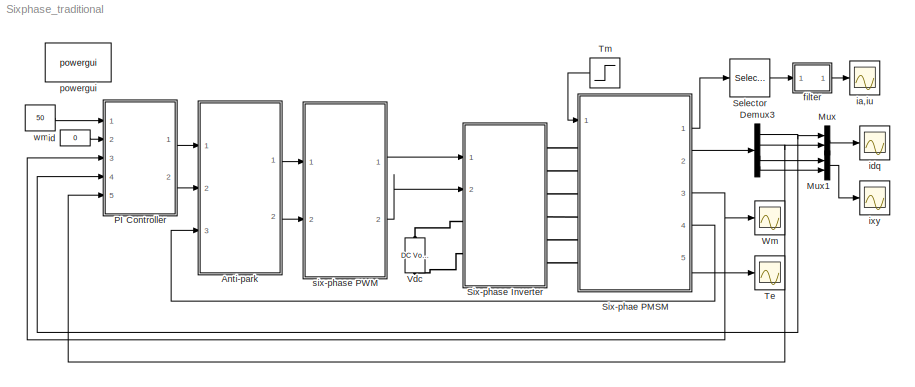
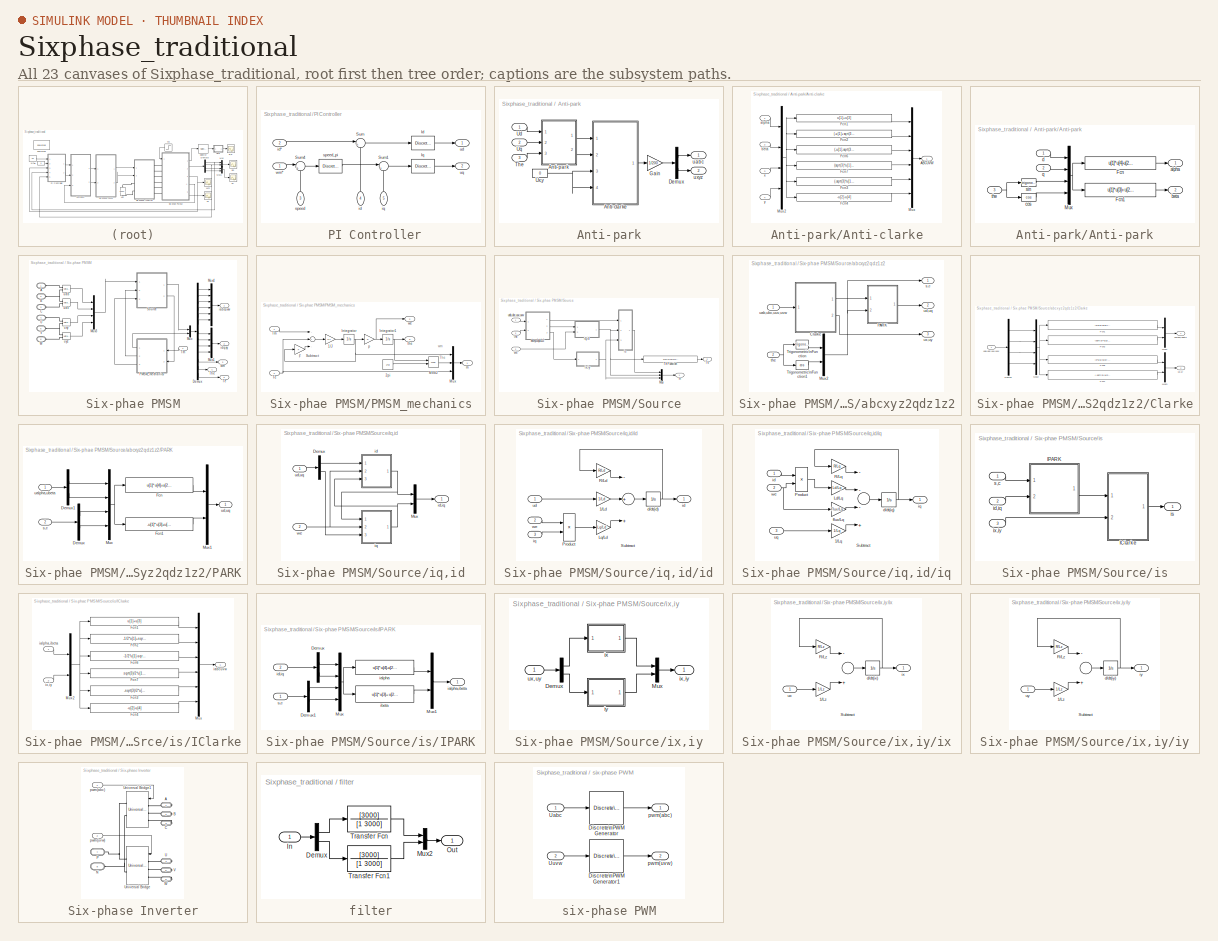
[diagram: thumbnail index - all 23 canvases of the model, root first then tree order]
MODEL Sixphase_traditional
KIND model
CONFIG InitFcn = Ts=50e-6;
BLOCK [SubSystem]  PI Controller
  Ports = [5, 2]
  RequestExecContextInheritance = off
  SID = 3
BLOCK [Reference]  PI Controller/Id  REF=powerlib_extras/Discrete \nControl Blocks/Discrete\nPI Controller
  Init = 0
  Ki = 1.4*1200
  Kp = 0.008*1200
  Par_Limits = [100 -100]
  Ports = [1, 1]
  SID = 349
  SourceBlock = powerlib_extras/Discrete \nControl Blocks/Discrete\nPI Controller
  SourceType = Discrete PI Controller
  Ts = Ts
BLOCK [Reference]  PI Controller/Iq  REF=powerlib_extras/Discrete \nControl Blocks/Discrete\nPI Controller
  Init = 0
  Ki = 1.4*1200
  Kp = 0.008*1200
  Par_Limits = [100 -100]
  Ports = [1, 1]
  SID = 350
  SourceBlock = powerlib_extras/Discrete \nControl Blocks/Discrete\nPI Controller
  SourceType = Discrete PI Controller
  Ts = Ts
BLOCK [Sum]  PI Controller/Sum
  IconShape = round
  InputSameDT = off
  Inputs = |+-
  OutDataTypeStr = Inherit: Inherit via internal rule
  Ports = [2, 1]
  SID = 54
  SaturateOnIntegerOverflow = off
BLOCK [Sum]  PI Controller/Sum1
  IconShape = round
  InputSameDT = off
  Inputs = |+-
  OutDataTypeStr = Inherit: Inherit via internal rule
  Ports = [2, 1]
  SID = 55
  SaturateOnIntegerOverflow = off
BLOCK [Sum]  PI Controller/Sum4
  IconShape = round
  InputSameDT = off
  Inputs = |+-
  OutDataTypeStr = Inherit: Inherit via internal rule
  Ports = [2, 1]
  SID = 58
  SaturateOnIntegerOverflow = off
BLOCK [Inport]  PI Controller/id
  IconDisplay = Port number
  Port = 4
  SID = 9
BLOCK [Inport]  PI Controller/id*
  IconDisplay = Port number
  Port = 2
  SID = 5
BLOCK [Inport]  PI Controller/iq
  IconDisplay = Port number
  Port = 5
  SID = 10
BLOCK [Inport]  PI Controller/speed
  IconDisplay = Port number
  Port = 3
  SID = 8
BLOCK [Reference]  PI Controller/speed_pi  REF=powerlib_extras/Discrete \nControl Blocks/Discrete\nPI Controller
  Init = 0
  Ki = 80
  Kp = 1
  Par_Limits = [50 -50]
  Ports = [1, 1]
  SID = 353
  SourceBlock = powerlib_extras/Discrete \nControl Blocks/Discrete\nPI Controller
  SourceType = Discrete PI Controller
  Ts = Ts
BLOCK [Outport]  PI Controller/ud
  IconDisplay = Port number
  SID = 59
BLOCK [Outport]  PI Controller/uq
  IconDisplay = Port number
  Port = 2
  SID = 60
BLOCK [Inport]  PI Controller/wm*
  IconDisplay = Port number
  SID = 4
BLOCK [SubSystem] Anti-park
  Ports = [3, 2]
  RequestExecContextInheritance = off
  SID = 293
BLOCK [SubSystem] Anti-park/Anti-clarke
  Ports = [4, 1]
  RequestExecContextInheritance = off
  SID = 301
BLOCK [Outport] Anti-park/Anti-clarke/ABCUVW
  IconDisplay = Port number
  SID = 314
BLOCK [Fcn] Anti-park/Anti-clarke/Fcn1
  Expr = u[1]+u[3]
  SID = 306
BLOCK [Fcn] Anti-park/Anti-clarke/Fcn2
  Expr = (-u[1]+sqrt(3)*u[2]-u[3]-sqrt(3)*u[4])/2
  SID = 307
BLOCK [Fcn] Anti-park/Anti-clarke/Fcn3
  Expr = (-sqrt(3)*u[1]+u[2]+sqrt(3)*u[3]+u[4])/2
  SID = 308
BLOCK [Fcn] Anti-park/Anti-clarke/Fcn4
  Expr = -u[2]-u[4]
  SID = 309
BLOCK [Fcn] Anti-park/Anti-clarke/Fcn6
  Expr = (-u[1]-sqrt(3)*u[2]-u[3]+sqrt(3)*u[4])/2
  SID = 310
BLOCK [Fcn] Anti-park/Anti-clarke/Fcn7
  Expr = (sqrt(3)*u[1]+u[2]-sqrt(3)*u[3]+u[4])/2
  SID = 311
BLOCK [Mux] Anti-park/Anti-clarke/Mux
  DisplayOption = bar
  Inputs = 6
  Ports = [6, 1]
  SID = 312
BLOCK [Mux] Anti-park/Anti-clarke/Mux2
  DisplayOption = bar
  Ports = [4, 1]
  SID = 313
BLOCK [Inport] Anti-park/Anti-clarke/alpha
  IconDisplay = Port number
  SID = 302
BLOCK [Inport] Anti-park/Anti-clarke/beta
  IconDisplay = Port number
  Port = 2
  SID = 303
BLOCK [Inport] Anti-park/Anti-clarke/x
  IconDisplay = Port number
  Port = 3
  SID = 304
BLOCK [Inport] Anti-park/Anti-clarke/y
  IconDisplay = Port number
  Port = 4
  SID = 305
BLOCK [SubSystem] Anti-park/Anti-park
  Ports = [3, 2]
  RequestExecContextInheritance = off
  SID = 315
BLOCK [Fcn] Anti-park/Anti-park/Fcn
  Expr = u[1]*u[4]-u[2]*u[3]
  SID = 319
BLOCK [Fcn] Anti-park/Anti-park/Fcn1
  Expr = u[1]*u[3]+u[2]*u[4]
  SID = 320
BLOCK [Mux] Anti-park/Anti-park/Mux
  DisplayOption = bar
  Ports = [4, 1]
  SID = 321
BLOCK [Outport] Anti-park/Anti-park/alpha
  IconDisplay = Port number
  SID = 324
BLOCK [Outport] Anti-park/Anti-park/beta
  IconDisplay = Port number
  Port = 2
  SID = 325
BLOCK [Trigonometry] Anti-park/Anti-park/cos
  Operator = cos
  Ports = [1, 1]
  SID = 322
BLOCK [Inport] Anti-park/Anti-park/d
  IconDisplay = Port number
  SID = 316
BLOCK [Inport] Anti-park/Anti-park/q
  IconDisplay = Port number
  Port = 2
  SID = 317
BLOCK [Trigonometry] Anti-park/Anti-park/sin
  Ports = [1, 1]
  SID = 323
BLOCK [Inport] Anti-park/Anti-park/the
  IconDisplay = Port number
  Port = 3
  SID = 318
BLOCK [Demux] Anti-park/Demux
  DisplayOption = bar
  Outputs = 2
  Ports = [1, 2]
  SID = 299
BLOCK [Gain] Anti-park/Gain
  Gain = 1/200
  OutDataTypeStr = Inherit: Inherit via internal rule
  ParamDataTypeStr = Inherit: Inherit via internal rule
  SID = 300
  SaturateOnIntegerOverflow = off
BLOCK [Inport] Anti-park/The
  IconDisplay = Port number
  Port = 3
  SID = 296
BLOCK [Inport] Anti-park/Ud
  IconDisplay = Port number
  SID = 294
BLOCK [Inport] Anti-park/Uq
  IconDisplay = Port number
  Port = 2
  SID = 295
BLOCK [Constant] Anti-park/Ux,y
  SID = 354
  Value = 0
BLOCK [Outport] Anti-park/uabc
  IconDisplay = Port number
  SID = 326
BLOCK [Outport] Anti-park/uxyz
  IconDisplay = Port number
  Port = 2
  SID = 327
BLOCK [Demux] Demux3
  DisplayOption = bar
  Ports = [1, 4]
  SID = 222
BLOCK [Mux] Mux
  DisplayOption = bar
  Inputs = 2
  Ports = [2, 1]
  SID = 369
BLOCK [Mux] Mux1
  DisplayOption = bar
  Inputs = 2
  Ports = [2, 1]
  SID = 371
BLOCK [Selector] Selector
  Indices = [1 4]
  InputPortWidth = 6
  Ports = [1, 1]
  SID = 367
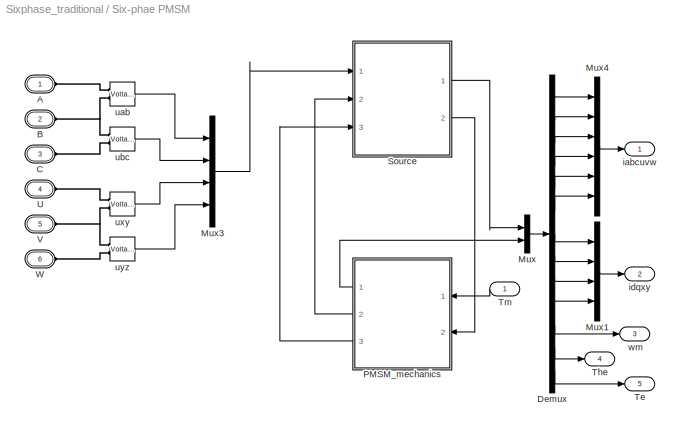
BLOCK [SubSystem] Six-phae PMSM
  Ports = [1, 5, 0, 0, 0, 6]
  RequestExecContextInheritance = off
  SID = 63
BLOCK [PMIOPort] Six-phae PMSM/A
  Port = 1
  SID = 208
  Side = Left
  Tag = PMCPort
BLOCK [PMIOPort] Six-phae PMSM/B
  Port = 2
  SID = 209
  Side = Left
  Tag = PMCPort
BLOCK [PMIOPort] Six-phae PMSM/C
  Port = 3
  SID = 210
  Side = Left
  Tag = PMCPort
BLOCK [Demux] Six-phae PMSM/Demux
  DisplayOption = bar
  Outputs = 13
  Ports = [1, 13]
  SID = 65
BLOCK [Mux] Six-phae PMSM/Mux
  DisplayOption = bar
  Inputs = 2
  Ports = [2, 1]
  SID = 66
BLOCK [Mux] Six-phae PMSM/Mux1
  DisplayOption = bar
  Ports = [4, 1]
  SID = 67
BLOCK [Mux] Six-phae PMSM/Mux3
  DisplayOption = bar
  Ports = [4, 1]
  SID = 69
BLOCK [Mux] Six-phae PMSM/Mux4
  DisplayOption = bar
  Inputs = 6
  Ports = [6, 1]
  SID = 70
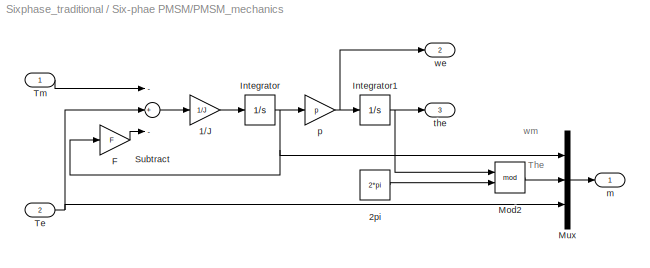
BLOCK [SubSystem] Six-phae PMSM/PMSM_mechanics
  Ports = [2, 3]
  RequestExecContextInheritance = off
  SID = 71
BLOCK [Gain] Six-phae PMSM/PMSM_mechanics/1//J
  Gain = 1/J
  OutDataTypeStr = Inherit: Inherit via internal rule
  ParamDataTypeStr = Inherit: Inherit via internal rule
  SID = 74
  SaturateOnIntegerOverflow = off
BLOCK [Constant] Six-phae PMSM/PMSM_mechanics/2pi
  SID = 76
  Value = 2*pi
BLOCK [Gain] Six-phae PMSM/PMSM_mechanics/F
  Gain = F
  OutDataTypeStr = Inherit: Inherit via internal rule
  ParamDataTypeStr = Inherit: Inherit via internal rule
  SID = 77
  SaturateOnIntegerOverflow = off
BLOCK [Integrator] Six-phae PMSM/PMSM_mechanics/Integrator
  Ports = [1, 1]
  SID = 78
BLOCK [Integrator] Six-phae PMSM/PMSM_mechanics/Integrator1
  Ports = [1, 1]
  SID = 79
BLOCK [Math] Six-phae PMSM/PMSM_mechanics/Mod2
  Operator = mod
  Ports = [2, 1]
  SID = 81
BLOCK [Mux] Six-phae PMSM/PMSM_mechanics/Mux
  DisplayOption = bar
  Inputs = 3
  Ports = [3, 1]
  SID = 82
BLOCK [Sum] Six-phae PMSM/PMSM_mechanics/Subtract
  InputSameDT = off
  Inputs = -+-
  OutDataTypeStr = Inherit: Inherit via internal rule
  Ports = [3, 1]
  SID = 83
  SaturateOnIntegerOverflow = off
BLOCK [Inport] Six-phae PMSM/PMSM_mechanics/Te
  IconDisplay = Port number
  Port = 2
  SID = 73
BLOCK [Inport] Six-phae PMSM/PMSM_mechanics/Tm
  IconDisplay = Port number
  SID = 72
BLOCK [Outport] Six-phae PMSM/PMSM_mechanics/m
  IconDisplay = Port number
  SID = 87
BLOCK [Gain] Six-phae PMSM/PMSM_mechanics/p
  Gain = p
  OutDataTypeStr = Inherit: Inherit via internal rule
  ParamDataTypeStr = Inherit: Inherit via internal rule
  SID = 84
  SaturateOnIntegerOverflow = off
BLOCK [Outport] Six-phae PMSM/PMSM_mechanics/the
  IconDisplay = Port number
  Port = 3
  SID = 86
BLOCK [Outport] Six-phae PMSM/PMSM_mechanics/we
  IconDisplay = Port number
  Port = 2
  SID = 85
BLOCK [SubSystem] Six-phae PMSM/Source
  Ports = [3, 2]
  RequestExecContextInheritance = off
  SID = 88
BLOCK [Mux] Six-phae PMSM/Source/Mux
  DisplayOption = bar
  Inputs = 3
  Ports = [3, 1]
  SID = 92
BLOCK [Outport] Six-phae PMSM/Source/Te
  IconDisplay = Port number
  Port = 2
  SID = 203
BLOCK [Fcn] Six-phae PMSM/Source/Te Function
  Expr = 3*p*(Flux*u[2]+(Ld-Lq)*u[1]*u[2])
  SID = 93
BLOCK [SubSystem] Six-phae PMSM/Source/abcxyz2qdz1z2
  Ports = [2, 3]
  RequestExecContextInheritance = off
  SID = 94
BLOCK [SubSystem] Six-phae PMSM/Source/abcxyz2qdz1z2/Clarke
  Ports = [1, 2]
  RequestExecContextInheritance = off
  SID = 97
BLOCK [Demux] Six-phae PMSM/Source/abcxyz2qdz1z2/Clarke/Demux
  DisplayOption = bar
  Ports = [1, 4]
  SID = 99
BLOCK [Fcn] Six-phae PMSM/Source/abcxyz2qdz1z2/Clarke/Fcn1
  Expr = (2*u[1]+u[2]+sqrt(3)*u[3])/6
  SID = 100
BLOCK [Fcn] Six-phae PMSM/Source/abcxyz2qdz1z2/Clarke/Fcn2
  Expr = (sqrt(3)*u[2]+u[3]+2*u[4])/6
  SID = 101
BLOCK [Fcn] Six-phae PMSM/Source/abcxyz2qdz1z2/Clarke/Fcn6
  Expr = (2*u[1]+u[2]-sqrt(3)*u[3])/6
  SID = 102
BLOCK [Fcn] Six-phae PMSM/Source/abcxyz2qdz1z2/Clarke/Fcn7
  Expr = (-sqrt(3)*u[2]+u[3]+2*u[4])/6
  SID = 103
BLOCK [Mux] Six-phae PMSM/Source/abcxyz2qdz1z2/Clarke/Mux1
  DisplayOption = bar
  Inputs = 2
  Ports = [2, 1]
  SID = 104
BLOCK [Mux] Six-phae PMSM/Source/abcxyz2qdz1z2/Clarke/Mux2
  DisplayOption = bar
  Ports = [4, 1]
  SID = 105
BLOCK [Mux] Six-phae PMSM/Source/abcxyz2qdz1z2/Clarke/Mux3
  DisplayOption = bar
  Inputs = 2
  Ports = [2, 1]
  SID = 106
BLOCK [Inport] Six-phae PMSM/Source/abcxyz2qdz1z2/Clarke/uab,ubc,uuv,uvw
  IconDisplay = Port number
  SID = 98
BLOCK [Outport] Six-phae PMSM/Source/abcxyz2qdz1z2/Clarke/ualpha,ubeta
  IconDisplay = Port number
  SID = 107
BLOCK [Outport] Six-phae PMSM/Source/abcxyz2qdz1z2/Clarke/ux,uy
  IconDisplay = Port number
  Port = 2
  SID = 108
BLOCK [Mux] Six-phae PMSM/Source/abcxyz2qdz1z2/Mux2
  DisplayOption = bar
  Inputs = 2
  Ports = [2, 1]
  SID = 109
BLOCK [SubSystem] Six-phae PMSM/Source/abcxyz2qdz1z2/PARK
  Ports = [2, 1]
  RequestExecContextInheritance = off
  SID = 110
BLOCK [Demux] Six-phae PMSM/Source/abcxyz2qdz1z2/PARK/Demux
  DisplayOption = bar
  Outputs = 2
  Ports = [1, 2]
  SID = 113
BLOCK [Demux] Six-phae PMSM/Source/abcxyz2qdz1z2/PARK/Demux1
  DisplayOption = bar
  Outputs = 2
  Ports = [1, 2]
  SID = 114
BLOCK [Fcn] Six-phae PMSM/Source/abcxyz2qdz1z2/PARK/Fcn
  Expr = u[1]*u[4]+u[2]*u[3]
  SID = 115
BLOCK [Fcn] Six-phae PMSM/Source/abcxyz2qdz1z2/PARK/Fcn1
  Expr = -u[1]*u[3]+u[2]*u[4]
  SID = 116
BLOCK [Mux] Six-phae PMSM/Source/abcxyz2qdz1z2/PARK/Mux
  DisplayOption = bar
  Ports = [4, 1]
  SID = 117
BLOCK [Mux] Six-phae PMSM/Source/abcxyz2qdz1z2/PARK/Mux1
  DisplayOption = bar
  Inputs = 2
  Ports = [2, 1]
  SID = 118
BLOCK [Inport] Six-phae PMSM/Source/abcxyz2qdz1z2/PARK/s,c
  IconDisplay = Port number
  Port = 2
  SID = 112
BLOCK [Inport] Six-phae PMSM/Source/abcxyz2qdz1z2/PARK/ualpha,ubeta
  IconDisplay = Port number
  SID = 111
BLOCK [Outport] Six-phae PMSM/Source/abcxyz2qdz1z2/PARK/ud,uq
  IconDisplay = Port number
  SID = 119
BLOCK [Trigonometry] Six-phae PMSM/Source/abcxyz2qdz1z2/Trigonometric\nFunction
  Ports = [1, 1]
  SID = 120
BLOCK [Trigonometry] Six-phae PMSM/Source/abcxyz2qdz1z2/Trigonometric\nFunction1
  Operator = cos
  Ports = [1, 1]
  SID = 121
BLOCK [Outport] Six-phae PMSM/Source/abcxyz2qdz1z2/s,c
  IconDisplay = Port number
  SID = 122
BLOCK [Inport] Six-phae PMSM/Source/abcxyz2qdz1z2/the
  IconDisplay = Port number
  Port = 2
  SID = 96
BLOCK [Inport] Six-phae PMSM/Source/abcxyz2qdz1z2/uab,ubc,uuv,uvw
  IconDisplay = Port number
  SID = 95
BLOCK [Outport] Six-phae PMSM/Source/abcxyz2qdz1z2/ud,uq
  IconDisplay = Port number
  Port = 2
  SID = 123
BLOCK [Outport] Six-phae PMSM/Source/abcxyz2qdz1z2/ux,uy
  IconDisplay = Port number
  Port = 3
  SID = 124
BLOCK [SubSystem] Six-phae PMSM/Source/iq,id
  Ports = [2, 1]
  RequestExecContextInheritance = off
  SID = 125
BLOCK [Demux] Six-phae PMSM/Source/iq,id/Demux
  DisplayOption = bar
  Outputs = 2
  Ports = [1, 2]
  SID = 128
BLOCK [Mux] Six-phae PMSM/Source/iq,id/Mux
  DisplayOption = bar
  Inputs = 2
  Ports = [2, 1]
  SID = 129
BLOCK [SubSystem] Six-phae PMSM/Source/iq,id/id
  Ports = [3, 1]
  RequestExecContextInheritance = off
  SID = 130
BLOCK [Outport] Six-phae PMSM/Source/iq,id/id,iq
  IconDisplay = Port number
  SID = 153
BLOCK [Gain] Six-phae PMSM/Source/iq,id/id/1//Ld
  Gain = 1/Ld
  OutDataTypeStr = Inherit: Inherit via internal rule
  ParamDataTypeStr = Inherit: Inherit via internal rule
  SID = 134
  SaturateOnIntegerOverflow = off
BLOCK [Gain] Six-phae PMSM/Source/iq,id/id/Lq//Ld
  Gain = Lq/Ld
  OutDataTypeStr = Inherit: Inherit via internal rule
  ParamDataTypeStr = Inherit: Inherit via internal rule
  SID = 135
  SaturateOnIntegerOverflow = off
BLOCK [Product] Six-phae PMSM/Source/iq,id/id/Product
  InputSameDT = off
  OutDataTypeStr = Inherit: Inherit via internal rule
  Ports = [2, 1]
  SID = 136
  SaturateOnIntegerOverflow = off
BLOCK [Gain] Six-phae PMSM/Source/iq,id/id/R//Ld
  Gain = R/Ld
  OutDataTypeStr = Inherit: Inherit via internal rule
  ParamDataTypeStr = Inherit: Inherit via internal rule
  SID = 137
  SaturateOnIntegerOverflow = off
BLOCK [Sum] Six-phae PMSM/Source/iq,id/id/Subtract
  InputSameDT = off
  Inputs = -++
  OutDataTypeStr = Inherit: Inherit via internal rule
  Ports = [3, 1]
  SID = 138
  SaturateOnIntegerOverflow = off
BLOCK [Integrator] Six-phae PMSM/Source/iq,id/id/d//dt(id)
  Ports = [1, 1]
  SID = 139
BLOCK [Outport] Six-phae PMSM/Source/iq,id/id/id
  IconDisplay = Port number
  SID = 140
BLOCK [Inport] Six-phae PMSM/Source/iq,id/id/iq
  IconDisplay = Port number
  Port = 3
  SID = 133
BLOCK [Inport] Six-phae PMSM/Source/iq,id/id/ud
  IconDisplay = Port number
  SID = 131
BLOCK [Inport] Six-phae PMSM/Source/iq,id/id/we
  IconDisplay = Port number
  Port = 2
  SID = 132
BLOCK [SubSystem] Six-phae PMSM/Source/iq,id/iq
  Ports = [3, 1]
  RequestExecContextInheritance = off
  SID = 141
BLOCK [Gain] Six-phae PMSM/Source/iq,id/iq/1//Lq
  Gain = 1/Lq
  OutDataTypeStr = Inherit: Inherit via internal rule
  ParamDataTypeStr = Inherit: Inherit via internal rule
  SID = 145
  SaturateOnIntegerOverflow = off
BLOCK [Gain] Six-phae PMSM/Source/iq,id/iq/Ld//Lq
  Gain = Ld/Lq
  OutDataTypeStr = Inherit: Inherit via internal rule
  ParamDataTypeStr = Inherit: Inherit via internal rule
  SID = 146
  SaturateOnIntegerOverflow = off
BLOCK [Product] Six-phae PMSM/Source/iq,id/iq/Product
  InputSameDT = off
  OutDataTypeStr = Inherit: Inherit via internal rule
  Ports = [2, 1]
  SID = 147
  SaturateOnIntegerOverflow = off
BLOCK [Gain] Six-phae PMSM/Source/iq,id/iq/R//Lq
  Gain = R/Lq
  OutDataTypeStr = Inherit: Inherit via internal rule
  ParamDataTypeStr = Inherit: Inherit via internal rule
  SID = 148
  SaturateOnIntegerOverflow = off
BLOCK [Sum] Six-phae PMSM/Source/iq,id/iq/Subtract
  InputSameDT = off
  Inputs = ---+
  OutDataTypeStr = Inherit: Inherit via internal rule
  Ports = [4, 1]
  SID = 149
  SaturateOnIntegerOverflow = off
BLOCK [Integrator] Six-phae PMSM/Source/iq,id/iq/d//dt(iq)
  Ports = [1, 1]
  SID = 150
BLOCK [Gain] Six-phae PMSM/Source/iq,id/iq/flux//Lq
  Gain = Flux/Lq
  OutDataTypeStr = Inherit: Inherit via internal rule
  ParamDataTypeStr = Inherit: Inherit via internal rule
  SID = 151
  SaturateOnIntegerOverflow = off
BLOCK [Inport] Six-phae PMSM/Source/iq,id/iq/id
  IconDisplay = Port number
  SID = 142
BLOCK [Outport] Six-phae PMSM/Source/iq,id/iq/iq
  IconDisplay = Port number
  SID = 152
BLOCK [Inport] Six-phae PMSM/Source/iq,id/iq/uq
  IconDisplay = Port number
  Port = 3
  SID = 144
BLOCK [Inport] Six-phae PMSM/Source/iq,id/iq/we
  IconDisplay = Port number
  Port = 2
  SID = 143
BLOCK [Inport] Six-phae PMSM/Source/iq,id/ud,uq
  IconDisplay = Port number
  SID = 126
BLOCK [Inport] Six-phae PMSM/Source/iq,id/we
  IconDisplay = Port number
  Port = 2
  SID = 127
BLOCK [SubSystem] Six-phae PMSM/Source/is
  Ports = [3, 1]
  RequestExecContextInheritance = off
  SID = 154
BLOCK [SubSystem] Six-phae PMSM/Source/is/IClarke
  Ports = [2, 1]
  RequestExecContextInheritance = off
  SID = 158
BLOCK [Fcn] Six-phae PMSM/Source/is/IClarke/Fcn1
  Expr = u[1]+u[3]
  SID = 163
BLOCK [Fcn] Six-phae PMSM/Source/is/IClarke/Fcn2
  Expr = -1/2*u[1]+sqrt(3)/2*u[2]-1/2*u[3]-sqrt(3)/2*u[4]
  SID = 164
BLOCK [Fcn] Six-phae PMSM/Source/is/IClarke/Fcn3
  Expr = -sqrt(3)/2*u[1]+1/2*u[2]+sqrt(3)/2*u[3]+1/2*u[4]
  SID = 165
BLOCK [Fcn] Six-phae PMSM/Source/is/IClarke/Fcn4
  Expr = -u[2]-u[4]
  SID = 166
BLOCK [Fcn] Six-phae PMSM/Source/is/IClarke/Fcn6
  Expr = -1/2*u[1]-sqrt(3)/2*u[2]-1/2*u[3]+sqrt(3)/2*u[4]
  SID = 167
BLOCK [Fcn] Six-phae PMSM/Source/is/IClarke/Fcn7
  Expr = sqrt(3)/2*u[1]+1/2*u[2]-sqrt(3)/2*u[3]+1/2*u[4]
  SID = 168
BLOCK [Mux] Six-phae PMSM/Source/is/IClarke/Mux
  DisplayOption = bar
  Inputs = 6
  Ports = [6, 1]
  SID = 169
BLOCK [Mux] Six-phae PMSM/Source/is/IClarke/Mux2
  DisplayOption = bar
  Inputs = 2
  Ports = [2, 1]
  SID = 170
BLOCK [Outport] Six-phae PMSM/Source/is/IClarke/iabcuvw
  IconDisplay = Port number
  SID = 171
BLOCK [Inport] Six-phae PMSM/Source/is/IClarke/ialpha,ibeta
  IconDisplay = Port number
  SID = 159
BLOCK [Inport] Six-phae PMSM/Source/is/IClarke/ix,iy
  IconDisplay = Port number
  Port = 2
  SID = 160
BLOCK [SubSystem] Six-phae PMSM/Source/is/IPARK
  Ports = [2, 1]
  RequestExecContextInheritance = off
  SID = 172
BLOCK [Demux] Six-phae PMSM/Source/is/IPARK/Demux
  DisplayOption = bar
  Outputs = 2
  Ports = [1, 2]
  SID = 175
BLOCK [Demux] Six-phae PMSM/Source/is/IPARK/Demux1
  DisplayOption = bar
  Outputs = 2
  Ports = [1, 2]
  SID = 176
BLOCK [Mux] Six-phae PMSM/Source/is/IPARK/Mux
  DisplayOption = bar
  Ports = [4, 1]
  SID = 177
BLOCK [Mux] Six-phae PMSM/Source/is/IPARK/Mux1
  DisplayOption = bar
  Inputs = 2
  Ports = [2, 1]
  SID = 178
BLOCK [Fcn] Six-phae PMSM/Source/is/IPARK/ialpha
  Expr = u[1]*u[4]-u[2]*u[3]
  SID = 179
BLOCK [Outport] Six-phae PMSM/Source/is/IPARK/ialpha,ibeta
  IconDisplay = Port number
  SID = 181
BLOCK [Fcn] Six-phae PMSM/Source/is/IPARK/ibeta
  Expr = u[1]*u[3]+u[2]*u[4]
  SID = 180
BLOCK [Inport] Six-phae PMSM/Source/is/IPARK/id,iq
  IconDisplay = Port number
  Port = 2
  SID = 174
BLOCK [Inport] Six-phae PMSM/Source/is/IPARK/s,c
  IconDisplay = Port number
  SID = 173
BLOCK [Inport] Six-phae PMSM/Source/is/id,iq
  IconDisplay = Port number
  Port = 2
  SID = 156
BLOCK [Outport] Six-phae PMSM/Source/is/is
  IconDisplay = Port number
  SID = 182
BLOCK [Inport] Six-phae PMSM/Source/is/ix,iy
  IconDisplay = Port number
  Port = 3
  SID = 157
BLOCK [Inport] Six-phae PMSM/Source/is/s,c
  IconDisplay = Port number
  SID = 155
BLOCK [SubSystem] Six-phae PMSM/Source/ix,iy
  Ports = [1, 1]
  RequestExecContextInheritance = off
  SID = 183
BLOCK [Demux] Six-phae PMSM/Source/ix,iy/Demux
  DisplayOption = bar
  Outputs = 2
  Ports = [1, 2]
  SID = 185
BLOCK [Mux] Six-phae PMSM/Source/ix,iy/Mux
  DisplayOption = bar
  Inputs = 2
  Ports = [2, 1]
  SID = 186
BLOCK [SubSystem] Six-phae PMSM/Source/ix,iy/ix
  Ports = [1, 1]
  RequestExecContextInheritance = off
  SID = 187
BLOCK [Outport] Six-phae PMSM/Source/ix,iy/ix,iy
  IconDisplay = Port number
  SID = 201
BLOCK [Gain] Six-phae PMSM/Source/ix,iy/ix/1//Lz
  Gain = 1/Lz
  OutDataTypeStr = Inherit: Inherit via internal rule
  ParamDataTypeStr = Inherit: Inherit via internal rule
  SID = 189
  SaturateOnIntegerOverflow = off
BLOCK [Gain] Six-phae PMSM/Source/ix,iy/ix/R//Lz
  Gain = R/Lz
  OutDataTypeStr = Inherit: Inherit via internal rule
  ParamDataTypeStr = Inherit: Inherit via internal rule
  SID = 190
  SaturateOnIntegerOverflow = off
BLOCK [Sum] Six-phae PMSM/Source/ix,iy/ix/Subtract
  InputSameDT = off
  Inputs = -+
  OutDataTypeStr = Inherit: Inherit via internal rule
  Ports = [2, 1]
  SID = 191
  SaturateOnIntegerOverflow = off
BLOCK [Integrator] Six-phae PMSM/Source/ix,iy/ix/d//dt(ix)
  Ports = [1, 1]
  SID = 192
BLOCK [Outport] Six-phae PMSM/Source/ix,iy/ix/ix
  IconDisplay = Port number
  SID = 193
BLOCK [Inport] Six-phae PMSM/Source/ix,iy/ix/ux
  IconDisplay = Port number
  SID = 188
BLOCK [SubSystem] Six-phae PMSM/Source/ix,iy/iy
  Ports = [1, 1]
  RequestExecContextInheritance = off
  SID = 194
BLOCK [Gain] Six-phae PMSM/Source/ix,iy/iy/1//Lz
  Gain = 1/Lz
  OutDataTypeStr = Inherit: Inherit via internal rule
  ParamDataTypeStr = Inherit: Inherit via internal rule
  SID = 196
  SaturateOnIntegerOverflow = off
BLOCK [Gain] Six-phae PMSM/Source/ix,iy/iy/R//Lz
  Gain = R/Lz
  OutDataTypeStr = Inherit: Inherit via internal rule
  ParamDataTypeStr = Inherit: Inherit via internal rule
  SID = 197
  SaturateOnIntegerOverflow = off
BLOCK [Sum] Six-phae PMSM/Source/ix,iy/iy/Subtract
  InputSameDT = off
  Inputs = -+
  OutDataTypeStr = Inherit: Inherit via internal rule
  Ports = [2, 1]
  SID = 198
  SaturateOnIntegerOverflow = off
BLOCK [Integrator] Six-phae PMSM/Source/ix,iy/iy/d//dt(iy)
  Ports = [1, 1]
  SID = 199
BLOCK [Outport] Six-phae PMSM/Source/ix,iy/iy/iy
  IconDisplay = Port number
  SID = 200
BLOCK [Inport] Six-phae PMSM/Source/ix,iy/iy/uy
  IconDisplay = Port number
  SID = 195
BLOCK [Inport] Six-phae PMSM/Source/ix,iy/ux,uy
  IconDisplay = Port number
  SID = 184
BLOCK [Outport] Six-phae PMSM/Source/m
  IconDisplay = Port number
  SID = 202
BLOCK [Inport] Six-phae PMSM/Source/the
  IconDisplay = Port number
  Port = 3
  SID = 91
BLOCK [Inport] Six-phae PMSM/Source/uab,ubc,uuv,uvw
  IconDisplay = Port number
  SID = 89
BLOCK [Inport] Six-phae PMSM/Source/we
  IconDisplay = Port number
  Port = 2
  SID = 90
BLOCK [Outport] Six-phae PMSM/Te
  IconDisplay = Port number
  Port = 5
  SID = 221
BLOCK [Outport] Six-phae PMSM/The
  IconDisplay = Port number
  Port = 4
  SID = 220
BLOCK [Inport] Six-phae PMSM/Tm
  IconDisplay = Port number
  SID = 64
BLOCK [PMIOPort] Six-phae PMSM/U
  Port = 4
  SID = 211
  Side = Left
  Tag = PMCPort
BLOCK [PMIOPort] Six-phae PMSM/V
  Port = 5
  SID = 212
  Side = Left
  Tag = PMCPort
BLOCK [PMIOPort] Six-phae PMSM/W
  Port = 6
  SID = 213
  Side = Left
  Tag = PMCPort
BLOCK [Outport] Six-phae PMSM/iabcuvw
  IconDisplay = Port number
  SID = 214
BLOCK [Outport] Six-phae PMSM/idqxy
  IconDisplay = Port number
  Port = 2
  SID = 215
BLOCK [Reference] Six-phae PMSM/uab  REF=powerlib/Measurements/Voltage Measurement
  OutputType = Complex
  PSBequivalent = 0
  PhasorSimulation = off
  Ports = [0, 1, 0, 0, 0, 2]
  SID = 204
  SourceBlock = powerlib/Measurements/Voltage Measurement
  SourceType = Voltage Measurement
BLOCK [Reference] Six-phae PMSM/ubc  REF=powerlib/Measurements/Voltage Measurement
  OutputType = Complex
  PSBequivalent = 0
  PhasorSimulation = off
  Ports = [0, 1, 0, 0, 0, 2]
  SID = 205
  SourceBlock = powerlib/Measurements/Voltage Measurement
  SourceType = Voltage Measurement
BLOCK [Reference] Six-phae PMSM/uxy  REF=powerlib/Measurements/Voltage Measurement
  OutputType = Complex
  PSBequivalent = 0
  PhasorSimulation = off
  Ports = [0, 1, 0, 0, 0, 2]
  SID = 206
  SourceBlock = powerlib/Measurements/Voltage Measurement
  SourceType = Voltage Measurement
BLOCK [Reference] Six-phae PMSM/uyz  REF=powerlib/Measurements/Voltage Measurement
  OutputType = Complex
  PSBequivalent = 0
  PhasorSimulation = off
  Ports = [0, 1, 0, 0, 0, 2]
  SID = 207
  SourceBlock = powerlib/Measurements/Voltage Measurement
  SourceType = Voltage Measurement
BLOCK [Outport] Six-phae PMSM/wm
  IconDisplay = Port number
  Port = 3
  SID = 217
BLOCK [SubSystem] Six-phase Inverter
  Ports = [2, 0, 0, 0, 0, 2, 6]
  RequestExecContextInheritance = off
  SID = 329
BLOCK [PMIOPort] Six-phase Inverter/A
  Port = 1
  SID = 332
  Side = Right
BLOCK [PMIOPort] Six-phase Inverter/B
  Port = 2
  SID = 333
  Side = Right
BLOCK [PMIOPort] Six-phase Inverter/C
  Port = 3
  SID = 334
  Side = Right
BLOCK [PMIOPort] Six-phase Inverter/N
  Port = 8
  SID = 339
  Side = Left
BLOCK [PMIOPort] Six-phase Inverter/P
  Port = 7
  SID = 338
  Side = Left
BLOCK [PMIOPort] Six-phase Inverter/U
  Port = 4
  SID = 335
  Side = Right
BLOCK [Reference] Six-phase Inverter/Universal Bridge  REF=powerlib/Power\nElectronics/Universal Bridge
  Arms = 3
  Device = IGBT / Diodes
  ForwardVoltage = 0
  ForwardVoltages = [  0  0  ]
  GTOparameters = [ 10e-6 , 20e-6 ]
  IGBTparameters = [ 1e-6 , 2e-6 ]
  Lon = 0
  Measurements = None
  Measurements_2 = None
  Ports = [1, 0, 0, 0, 0, 3, 2]
  Ron = 1e-3
  SID = 232
  SnubberCapacitance = inf
  SnubberResistance = 1e5
  SourceBlock = powerlib/Power\nElectronics/Universal Bridge
  SourceType = Universal Bridge
  converterType = Rectifier
BLOCK [Reference] Six-phase Inverter/Universal Bridge1  REF=powerlib/Power\nElectronics/Universal Bridge
  Arms = 3
  Device = IGBT / Diodes
  ForwardVoltage = 0
  ForwardVoltages = [  0  0  ]
  GTOparameters = [ 10e-6 , 20e-6 ]
  IGBTparameters = [ 1e-6 , 2e-6 ]
  Lon = 0
  Measurements = None
  Measurements_2 = None
  Ports = [1, 0, 0, 0, 0, 3, 2]
  Ron = 1e-3
  SID = 233
  SnubberCapacitance = inf
  SnubberResistance = 1e5
  SourceBlock = powerlib/Power\nElectronics/Universal Bridge
  SourceType = Universal Bridge
  converterType = Rectifier
BLOCK [PMIOPort] Six-phase Inverter/V
  Port = 5
  SID = 336
  Side = Right
BLOCK [PMIOPort] Six-phase Inverter/W
  Port = 6
  SID = 337
  Side = Right
BLOCK [Inport] Six-phase Inverter/pwm(abc)
  IconDisplay = Port number
  SID = 330
BLOCK [Inport] Six-phase Inverter/pwm(uvw)
  IconDisplay = Port number
  Port = 2
  SID = 331
BLOCK [Scope] Te
  DataFormat = StructureWithTime
  Floating = off
  LimitDataPoints = off
  NumInputPorts = 1
  Ports = [1]
  SID = 368
  SampleTime = 0
  SaveName = Te
  SaveToWorkspace = on
  ShowLegends = off
  YMax = 20
  YMin = -20
  ZoomMode = yonly
BLOCK [Step] Tm
  After = 50
  SID = 228
  SampleTime = 0
  Time = 0.2
BLOCK [Reference] Vdc  REF=powerlib/Electrical\nSources/DC Voltage Source
  Amplitude = 400
  Measurements = None
  Ports = [0, 0, 0, 0, 0, 1, 1]
  SID = 1
  SourceBlock = powerlib/Electrical\nSources/DC Voltage Source
  SourceType = DC Voltage Source
BLOCK [Scope] Wm
  DataFormat = StructureWithTime
  Floating = off
  LimitDataPoints = off
  NumInputPorts = 1
  Ports = [1]
  SID = 355
  SampleTime = 0
  SaveName = wm
  SaveToWorkspace = on
  ShowLegends = off
  YMax = 20
  YMin = -20
  ZoomMode = yonly
BLOCK [SubSystem] filter
  Ports = [1, 1]
  RequestExecContextInheritance = off
  SID = 376
BLOCK [Demux] filter/Demux
  DisplayOption = bar
  Outputs = 2
  Ports = [1, 2]
  SID = 375
BLOCK [Inport] filter/In
  IconDisplay = Port number
  SID = 377
BLOCK [Mux] filter/Mux2
  DisplayOption = bar
  Inputs = 2
  Ports = [2, 1]
  SID = 374
BLOCK [Outport] filter/Out
  IconDisplay = Port number
  SID = 378
BLOCK [TransferFcn] filter/Transfer Fcn
  Denominator = [1 3000]
  Numerator = [3000]
  SID = 372
BLOCK [TransferFcn] filter/Transfer Fcn1
  Denominator = [1 3000]
  Numerator = [3000]
  SID = 373
BLOCK [Scope] ia,iu
  DataFormat = StructureWithTime
  Floating = off
  LimitDataPoints = off
  NumInputPorts = 1
  Ports = [1]
  SID = 225
  SampleTime = 0
  SaveName = iau
  SaveToWorkspace = on
  ShowLegends = off
  YMax = 40
  YMin = -30
  ZoomMode = xonly
BLOCK [Constant] id
  SID = 286
  Value = 0
BLOCK [Scope] idq
  DataFormat = StructureWithTime
  Floating = off
  LimitDataPoints = off
  NumInputPorts = 1
  Ports = [1]
  SID = 226
  SampleTime = 0
  SaveName = idq
  SaveToWorkspace = on
  ShowLegends = off
  YMax = 0.075
  YMin = -0.075
  ZoomMode = yonly
BLOCK [Scope] ixy
  DataFormat = StructureWithTime
  Floating = off
  LimitDataPoints = off
  NumInputPorts = 1
  Ports = [1]
  SID = 370
  SampleTime = 0
  SaveName = ixy
  SaveToWorkspace = on
  ShowLegends = off
  YMax = 0.075
  YMin = -0.075
  ZoomMode = yonly
BLOCK [Reference] powergui  REF=powerlib/powergui
  DisableRonSwitches = off
  DisableSnubberDevices = off
  DisableVfSwitches = off
  DisplayEquations = off
  DisplayStyle = 1
  EnableUseOfTLC = off
  ErrMax = 1e-4
  Frange = [0:2:500]
  FreqAxis = off
  FunctionMessages = off
  HookPort = off
  Interpol = off
  Iterations = 50
  MaxFrequency = 1000
  Pbase = 100e6
  Ports = []
  Priority = 1
  ResistiveCurrentMeasurement = off
  RestoreLinks = warning
  RmsSteady = 1
  SID = 348
  SPID = off
  SampleTime = 50e-6
  ShowGrid = off
  SolverType = Tustin/Backward Euler (TBE)
  SourceBlock = powerlib/powergui
  SourceType = PSB option menu block
  StartTime = 0.25
  SwTol = 0
  Ts = 100
  UnitsV = kV
  UnitsW = MW
  UserData = DataTag0
  UserDataPersistent = on
  Xlog = on
  Ylog = off
  ZoomFFT = off
  cycles = 1
  display = off
  echomessages = off
  frequency = 60
  frequencyindice = 0
  frequencyindicesteady = 1
  fundamental = 25
  methode = off
  save = off
  structure = iau
  variable = ZData
  x0status = blocks
BLOCK [SubSystem] six-phase PWM
  Ports = [2, 2]
  RequestExecContextInheritance = off
  SID = 359
BLOCK [Reference] six-phase PWM/Discrete\nPWM Generator  REF=powerlib_extras/Discrete \nControl Blocks/Discrete\nPWM Generator
  Fc = 10000
  Freq = 60
  GeneratorMode = 3-arm  bridge (6 pulses)
  Internal = off
  Phase = 0
  Ports = [1, 1]
  SID = 223
  SourceBlock = powerlib_extras/Discrete \nControl Blocks/Discrete\nPWM Generator
  SourceType = Discrete PWM Generator
  Ts = 100e-6
  mIndex = 0.4
BLOCK [Reference] six-phase PWM/Discrete\nPWM Generator1  REF=powerlib_extras/Discrete \nControl Blocks/Discrete\nPWM Generator
  Fc = 10000
  Freq = 60
  GeneratorMode = 3-arm  bridge (6 pulses)
  Internal = off
  Phase = 0
  Ports = [1, 1]
  SID = 224
  SourceBlock = powerlib_extras/Discrete \nControl Blocks/Discrete\nPWM Generator
  SourceType = Discrete PWM Generator
  Ts = 100e-6
  mIndex = 0.4
BLOCK [Inport] six-phase PWM/Uabc
  IconDisplay = Port number
  SID = 360
BLOCK [Inport] six-phase PWM/Uuvw
  IconDisplay = Port number
  Port = 2
  SID = 361
BLOCK [Outport] six-phase PWM/pwm(abc)
  IconDisplay = Port number
  SID = 362
BLOCK [Outport] six-phase PWM/pwm(uvw)
  IconDisplay = Port number
  Port = 2
  SID = 363
BLOCK [Constant] wm
  SID = 328
  Value = 50
ANNOTATION Six-phae PMSM/PMSM_mechanics: The
ANNOTATION Six-phae PMSM/PMSM_mechanics: wm
LINE  PI Controller/Id:1 ->  PI Controller/ud:1
LINE  PI Controller/Iq:1 ->  PI Controller/uq:1
LINE  PI Controller/Sum1:1 ->  PI Controller/Iq:1
LINE  PI Controller/Sum4:1 ->  PI Controller/speed_pi:1
LINE  PI Controller/Sum:1 ->  PI Controller/Id:1
LINE  PI Controller/id*:1 ->  PI Controller/Sum:1
LINE  PI Controller/id:1 ->  PI Controller/Sum:2
LINE  PI Controller/iq:1 ->  PI Controller/Sum1:2
LINE  PI Controller/speed:1 ->  PI Controller/Sum4:2
LINE  PI Controller/speed_pi:1 ->  PI Controller/Sum1:1
LINE  PI Controller/wm*:1 ->  PI Controller/Sum4:1
LINE  PI Controller:1 -> Anti-park:1
LINE  PI Controller:2 -> Anti-park:2
LINE Anti-park/Anti-clarke/Fcn1:1 -> Anti-park/Anti-clarke/Mux:1
LINE Anti-park/Anti-clarke/Fcn2:1 -> Anti-park/Anti-clarke/Mux:2
LINE Anti-park/Anti-clarke/Fcn3:1 -> Anti-park/Anti-clarke/Mux:5
LINE Anti-park/Anti-clarke/Fcn4:1 -> Anti-park/Anti-clarke/Mux:6
LINE Anti-park/Anti-clarke/Fcn6:1 -> Anti-park/Anti-clarke/Mux:3
LINE Anti-park/Anti-clarke/Fcn7:1 -> Anti-park/Anti-clarke/Mux:4
NET Anti-park/Anti-clarke/Mux2:1 -> Anti-park/Anti-clarke/Fcn1:1, Anti-park/Anti-clarke/Fcn2:1, Anti-park/Anti-clarke/Fcn3:1, Anti-park/Anti-clarke/Fcn4:1, Anti-park/Anti-clarke/Fcn6:1, Anti-park/Anti-clarke/Fcn7:1
LINE Anti-park/Anti-clarke/Mux:1 -> Anti-park/Anti-clarke/ABCUVW:1
LINE Anti-park/Anti-clarke/alpha:1 -> Anti-park/Anti-clarke/Mux2:1
LINE Anti-park/Anti-clarke/beta:1 -> Anti-park/Anti-clarke/Mux2:2
LINE Anti-park/Anti-clarke/x:1 -> Anti-park/Anti-clarke/Mux2:3
LINE Anti-park/Anti-clarke/y:1 -> Anti-park/Anti-clarke/Mux2:4
LINE Anti-park/Anti-clarke:1 -> Anti-park/Gain:1
LINE Anti-park/Anti-park/Fcn1:1 -> Anti-park/Anti-park/beta:1
LINE Anti-park/Anti-park/Fcn:1 -> Anti-park/Anti-park/alpha:1
NET Anti-park/Anti-park/Mux:1 -> Anti-park/Anti-park/Fcn1:1, Anti-park/Anti-park/Fcn:1
LINE Anti-park/Anti-park/cos:1 -> Anti-park/Anti-park/Mux:4
LINE Anti-park/Anti-park/d:1 -> Anti-park/Anti-park/Mux:1
LINE Anti-park/Anti-park/q:1 -> Anti-park/Anti-park/Mux:2
LINE Anti-park/Anti-park/sin:1 -> Anti-park/Anti-park/Mux:3
NET Anti-park/Anti-park/the:1 -> Anti-park/Anti-park/cos:1, Anti-park/Anti-park/sin:1
LINE Anti-park/Anti-park:1 -> Anti-park/Anti-clarke:1
LINE Anti-park/Anti-park:2 -> Anti-park/Anti-clarke:2
LINE Anti-park/Demux:1 -> Anti-park/uabc:1
LINE Anti-park/Demux:2 -> Anti-park/uxyz:1
LINE Anti-park/Gain:1 -> Anti-park/Demux:1
LINE Anti-park/The:1 -> Anti-park/Anti-park:3
LINE Anti-park/Ud:1 -> Anti-park/Anti-park:1
LINE Anti-park/Uq:1 -> Anti-park/Anti-park:2
NET Anti-park/Ux,y:1 -> Anti-park/Anti-clarke:3, Anti-park/Anti-clarke:4
LINE Anti-park:1 -> six-phase PWM:1
LINE Anti-park:2 -> six-phase PWM:2
NET Demux3:1 ->  PI Controller:4, Mux:1
NET Demux3:2 ->  PI Controller:5, Mux:2
LINE Demux3:3 -> Mux1:1
LINE Demux3:4 -> Mux1:2
LINE Mux1:1 -> ixy:1
LINE Mux:1 -> idq:1
LINE Selector:1 -> filter:1
LINE Six-phae PMSM/Demux:1 -> Six-phae PMSM/Mux4:1
LINE Six-phae PMSM/Demux:10 -> Six-phae PMSM/Mux1:4
LINE Six-phae PMSM/Demux:11 -> Six-phae PMSM/wm:1
LINE Six-phae PMSM/Demux:12 -> Six-phae PMSM/The:1
LINE Six-phae PMSM/Demux:13 -> Six-phae PMSM/Te:1
LINE Six-phae PMSM/Demux:2 -> Six-phae PMSM/Mux4:2
LINE Six-phae PMSM/Demux:3 -> Six-phae PMSM/Mux4:3
LINE Six-phae PMSM/Demux:4 -> Six-phae PMSM/Mux4:4
LINE Six-phae PMSM/Demux:5 -> Six-phae PMSM/Mux4:5
LINE Six-phae PMSM/Demux:6 -> Six-phae PMSM/Mux4:6
LINE Six-phae PMSM/Demux:7 -> Six-phae PMSM/Mux1:1
LINE Six-phae PMSM/Demux:8 -> Six-phae PMSM/Mux1:2
LINE Six-phae PMSM/Demux:9 -> Six-phae PMSM/Mux1:3
LINE Six-phae PMSM/Mux1:1 -> Six-phae PMSM/idqxy:1
LINE Six-phae PMSM/Mux3:1 -> Six-phae PMSM/Source:1
LINE Six-phae PMSM/Mux4:1 -> Six-phae PMSM/iabcuvw:1
LINE Six-phae PMSM/Mux:1 -> Six-phae PMSM/Demux:1
LINE Six-phae PMSM/PMSM_mechanics/1//J:1 -> Six-phae PMSM/PMSM_mechanics/Integrator:1
LINE Six-phae PMSM/PMSM_mechanics/2pi:1 -> Six-phae PMSM/PMSM_mechanics/Mod2:2
LINE Six-phae PMSM/PMSM_mechanics/F:1 -> Six-phae PMSM/PMSM_mechanics/Subtract:3
NET Six-phae PMSM/PMSM_mechanics/Integrator1:1 -> Six-phae PMSM/PMSM_mechanics/Mod2:1, Six-phae PMSM/PMSM_mechanics/the:1
NET Six-phae PMSM/PMSM_mechanics/Integrator:1 -> Six-phae PMSM/PMSM_mechanics/F:1, Six-phae PMSM/PMSM_mechanics/Mux:1, Six-phae PMSM/PMSM_mechanics/p:1
LINE Six-phae PMSM/PMSM_mechanics/Mod2:1 -> Six-phae PMSM/PMSM_mechanics/Mux:2
LINE Six-phae PMSM/PMSM_mechanics/Mux:1 -> Six-phae PMSM/PMSM_mechanics/m:1
LINE Six-phae PMSM/PMSM_mechanics/Subtract:1 -> Six-phae PMSM/PMSM_mechanics/1//J:1
NET Six-phae PMSM/PMSM_mechanics/Te:1 -> Six-phae PMSM/PMSM_mechanics/Mux:3, Six-phae PMSM/PMSM_mechanics/Subtract:2
LINE Six-phae PMSM/PMSM_mechanics/Tm:1 -> Six-phae PMSM/PMSM_mechanics/Subtract:1
NET Six-phae PMSM/PMSM_mechanics/p:1 -> Six-phae PMSM/PMSM_mechanics/Integrator1:1, Six-phae PMSM/PMSM_mechanics/we:1
LINE Six-phae PMSM/PMSM_mechanics:1 -> Six-phae PMSM/Mux:2
LINE Six-phae PMSM/PMSM_mechanics:2 -> Six-phae PMSM/Source:2
LINE Six-phae PMSM/PMSM_mechanics:3 -> Six-phae PMSM/Source:3
LINE Six-phae PMSM/Source/Mux:1 -> Six-phae PMSM/Source/m:1
LINE Six-phae PMSM/Source/Te Function:1 -> Six-phae PMSM/Source/Te:1
LINE Six-phae PMSM/Source/abcxyz2qdz1z2/Clarke/Demux:1 -> Six-phae PMSM/Source/abcxyz2qdz1z2/Clarke/Mux2:1
LINE Six-phae PMSM/Source/abcxyz2qdz1z2/Clarke/Demux:2 -> Six-phae PMSM/Source/abcxyz2qdz1z2/Clarke/Mux2:2
LINE Six-phae PMSM/Source/abcxyz2qdz1z2/Clarke/Demux:3 -> Six-phae PMSM/Source/abcxyz2qdz1z2/Clarke/Mux2:3
LINE Six-phae PMSM/Source/abcxyz2qdz1z2/Clarke/Demux:4 -> Six-phae PMSM/Source/abcxyz2qdz1z2/Clarke/Mux2:4
LINE Six-phae PMSM/Source/abcxyz2qdz1z2/Clarke/Fcn1:1 -> Six-phae PMSM/Source/abcxyz2qdz1z2/Clarke/Mux1:1
LINE Six-phae PMSM/Source/abcxyz2qdz1z2/Clarke/Fcn2:1 -> Six-phae PMSM/Source/abcxyz2qdz1z2/Clarke/Mux1:2
LINE Six-phae PMSM/Source/abcxyz2qdz1z2/Clarke/Fcn6:1 -> Six-phae PMSM/Source/abcxyz2qdz1z2/Clarke/Mux3:1
LINE Six-phae PMSM/Source/abcxyz2qdz1z2/Clarke/Fcn7:1 -> Six-phae PMSM/Source/abcxyz2qdz1z2/Clarke/Mux3:2
LINE Six-phae PMSM/Source/abcxyz2qdz1z2/Clarke/Mux1:1 -> Six-phae PMSM/Source/abcxyz2qdz1z2/Clarke/ualpha,ubeta:1
NET Six-phae PMSM/Source/abcxyz2qdz1z2/Clarke/Mux2:1 -> Six-phae PMSM/Source/abcxyz2qdz1z2/Clarke/Fcn1:1, Six-phae PMSM/Source/abcxyz2qdz1z2/Clarke/Fcn2:1, Six-phae PMSM/Source/abcxyz2qdz1z2/Clarke/Fcn6:1, Six-phae PMSM/Source/abcxyz2qdz1z2/Clarke/Fcn7:1
LINE Six-phae PMSM/Source/abcxyz2qdz1z2/Clarke/Mux3:1 -> Six-phae PMSM/Source/abcxyz2qdz1z2/Clarke/ux,uy:1
LINE Six-phae PMSM/Source/abcxyz2qdz1z2/Clarke/uab,ubc,uuv,uvw:1 -> Six-phae PMSM/Source/abcxyz2qdz1z2/Clarke/Demux:1
LINE Six-phae PMSM/Source/abcxyz2qdz1z2/Clarke:1 -> Six-phae PMSM/Source/abcxyz2qdz1z2/PARK:1
LINE Six-phae PMSM/Source/abcxyz2qdz1z2/Clarke:2 -> Six-phae PMSM/Source/abcxyz2qdz1z2/ux,uy:1
NET Six-phae PMSM/Source/abcxyz2qdz1z2/Mux2:1 -> Six-phae PMSM/Source/abcxyz2qdz1z2/PARK:2, Six-phae PMSM/Source/abcxyz2qdz1z2/s,c:1
LINE Six-phae PMSM/Source/abcxyz2qdz1z2/PARK/Demux1:1 -> Six-phae PMSM/Source/abcxyz2qdz1z2/PARK/Mux:1
LINE Six-phae PMSM/Source/abcxyz2qdz1z2/PARK/Demux1:2 -> Six-phae PMSM/Source/abcxyz2qdz1z2/PARK/Mux:2
LINE Six-phae PMSM/Source/abcxyz2qdz1z2/PARK/Demux:1 -> Six-phae PMSM/Source/abcxyz2qdz1z2/PARK/Mux:3
LINE Six-phae PMSM/Source/abcxyz2qdz1z2/PARK/Demux:2 -> Six-phae PMSM/Source/abcxyz2qdz1z2/PARK/Mux:4
LINE Six-phae PMSM/Source/abcxyz2qdz1z2/PARK/Fcn1:1 -> Six-phae PMSM/Source/abcxyz2qdz1z2/PARK/Mux1:2
LINE Six-phae PMSM/Source/abcxyz2qdz1z2/PARK/Fcn:1 -> Six-phae PMSM/Source/abcxyz2qdz1z2/PARK/Mux1:1
LINE Six-phae PMSM/Source/abcxyz2qdz1z2/PARK/Mux1:1 -> Six-phae PMSM/Source/abcxyz2qdz1z2/PARK/ud,uq:1
NET Six-phae PMSM/Source/abcxyz2qdz1z2/PARK/Mux:1 -> Six-phae PMSM/Source/abcxyz2qdz1z2/PARK/Fcn1:1, Six-phae PMSM/Source/abcxyz2qdz1z2/PARK/Fcn:1
LINE Six-phae PMSM/Source/abcxyz2qdz1z2/PARK/s,c:1 -> Six-phae PMSM/Source/abcxyz2qdz1z2/PARK/Demux:1
LINE Six-phae PMSM/Source/abcxyz2qdz1z2/PARK/ualpha,ubeta:1 -> Six-phae PMSM/Source/abcxyz2qdz1z2/PARK/Demux1:1
LINE Six-phae PMSM/Source/abcxyz2qdz1z2/PARK:1 -> Six-phae PMSM/Source/abcxyz2qdz1z2/ud,uq:1
LINE Six-phae PMSM/Source/abcxyz2qdz1z2/Trigonometric\nFunction1:1 -> Six-phae PMSM/Source/abcxyz2qdz1z2/Mux2:2
LINE Six-phae PMSM/Source/abcxyz2qdz1z2/Trigonometric\nFunction:1 -> Six-phae PMSM/Source/abcxyz2qdz1z2/Mux2:1
NET Six-phae PMSM/Source/abcxyz2qdz1z2/the:1 -> Six-phae PMSM/Source/abcxyz2qdz1z2/Trigonometric\nFunction1:1, Six-phae PMSM/Source/abcxyz2qdz1z2/Trigonometric\nFunction:1
LINE Six-phae PMSM/Source/abcxyz2qdz1z2/uab,ubc,uuv,uvw:1 -> Six-phae PMSM/Source/abcxyz2qdz1z2/Clarke:1
LINE Six-phae PMSM/Source/abcxyz2qdz1z2:1 -> Six-phae PMSM/Source/is:1
LINE Six-phae PMSM/Source/abcxyz2qdz1z2:2 -> Six-phae PMSM/Source/iq,id:1
LINE Six-phae PMSM/Source/abcxyz2qdz1z2:3 -> Six-phae PMSM/Source/ix,iy:1
LINE Six-phae PMSM/Source/iq,id/Demux:1 -> Six-phae PMSM/Source/iq,id/id:1
LINE Six-phae PMSM/Source/iq,id/Demux:2 -> Six-phae PMSM/Source/iq,id/iq:3
LINE Six-phae PMSM/Source/iq,id/Mux:1 -> Six-phae PMSM/Source/iq,id/id,iq:1
LINE Six-phae PMSM/Source/iq,id/id/1//Ld:1 -> Six-phae PMSM/Source/iq,id/id/Subtract:2
LINE Six-phae PMSM/Source/iq,id/id/Lq//Ld:1 -> Six-phae PMSM/Source/iq,id/id/Subtract:3
LINE Six-phae PMSM/Source/iq,id/id/Product:1 -> Six-phae PMSM/Source/iq,id/id/Lq//Ld:1
LINE Six-phae PMSM/Source/iq,id/id/R//Ld:1 -> Six-phae PMSM/Source/iq,id/id/Subtract:1
LINE Six-phae PMSM/Source/iq,id/id/Subtract:1 -> Six-phae PMSM/Source/iq,id/id/d//dt(id):1
NET Six-phae PMSM/Source/iq,id/id/d//dt(id):1 -> Six-phae PMSM/Source/iq,id/id/R//Ld:1, Six-phae PMSM/Source/iq,id/id/id:1
LINE Six-phae PMSM/Source/iq,id/id/iq:1 -> Six-phae PMSM/Source/iq,id/id/Product:2
LINE Six-phae PMSM/Source/iq,id/id/ud:1 -> Six-phae PMSM/Source/iq,id/id/1//Ld:1
LINE Six-phae PMSM/Source/iq,id/id/we:1 -> Six-phae PMSM/Source/iq,id/id/Product:1
NET Six-phae PMSM/Source/iq,id/id:1 -> Six-phae PMSM/Source/iq,id/Mux:1, Six-phae PMSM/Source/iq,id/iq:1
LINE Six-phae PMSM/Source/iq,id/iq/1//Lq:1 -> Six-phae PMSM/Source/iq,id/iq/Subtract:4
LINE Six-phae PMSM/Source/iq,id/iq/Ld//Lq:1 -> Six-phae PMSM/Source/iq,id/iq/Subtract:2
LINE Six-phae PMSM/Source/iq,id/iq/Product:1 -> Six-phae PMSM/Source/iq,id/iq/Ld//Lq:1
LINE Six-phae PMSM/Source/iq,id/iq/R//Lq:1 -> Six-phae PMSM/Source/iq,id/iq/Subtract:1
LINE Six-phae PMSM/Source/iq,id/iq/Subtract:1 -> Six-phae PMSM/Source/iq,id/iq/d//dt(iq):1
NET Six-phae PMSM/Source/iq,id/iq/d//dt(iq):1 -> Six-phae PMSM/Source/iq,id/iq/R//Lq:1, Six-phae PMSM/Source/iq,id/iq/iq:1
LINE Six-phae PMSM/Source/iq,id/iq/flux//Lq:1 -> Six-phae PMSM/Source/iq,id/iq/Subtract:3
LINE Six-phae PMSM/Source/iq,id/iq/id:1 -> Six-phae PMSM/Source/iq,id/iq/Product:1
LINE Six-phae PMSM/Source/iq,id/iq/uq:1 -> Six-phae PMSM/Source/iq,id/iq/1//Lq:1
NET Six-phae PMSM/Source/iq,id/iq/we:1 -> Six-phae PMSM/Source/iq,id/iq/Product:2, Six-phae PMSM/Source/iq,id/iq/flux//Lq:1
NET Six-phae PMSM/Source/iq,id/iq:1 -> Six-phae PMSM/Source/iq,id/Mux:2, Six-phae PMSM/Source/iq,id/id:3
LINE Six-phae PMSM/Source/iq,id/ud,uq:1 -> Six-phae PMSM/Source/iq,id/Demux:1
NET Six-phae PMSM/Source/iq,id/we:1 -> Six-phae PMSM/Source/iq,id/id:2, Six-phae PMSM/Source/iq,id/iq:2
NET Six-phae PMSM/Source/iq,id:1 -> Six-phae PMSM/Source/Mux:2, Six-phae PMSM/Source/Te Function:1, Six-phae PMSM/Source/is:2
LINE Six-phae PMSM/Source/is/IClarke/Fcn1:1 -> Six-phae PMSM/Source/is/IClarke/Mux:1
LINE Six-phae PMSM/Source/is/IClarke/Fcn2:1 -> Six-phae PMSM/Source/is/IClarke/Mux:2
LINE Six-phae PMSM/Source/is/IClarke/Fcn3:1 -> Six-phae PMSM/Source/is/IClarke/Mux:5
LINE Six-phae PMSM/Source/is/IClarke/Fcn4:1 -> Six-phae PMSM/Source/is/IClarke/Mux:6
LINE Six-phae PMSM/Source/is/IClarke/Fcn6:1 -> Six-phae PMSM/Source/is/IClarke/Mux:3
LINE Six-phae PMSM/Source/is/IClarke/Fcn7:1 -> Six-phae PMSM/Source/is/IClarke/Mux:4
NET Six-phae PMSM/Source/is/IClarke/Mux2:1 -> Six-phae PMSM/Source/is/IClarke/Fcn1:1, Six-phae PMSM/Source/is/IClarke/Fcn2:1, Six-phae PMSM/Source/is/IClarke/Fcn3:1, Six-phae PMSM/Source/is/IClarke/Fcn4:1, Six-phae PMSM/Source/is/IClarke/Fcn6:1, Six-phae PMSM/Source/is/IClarke/Fcn7:1
LINE Six-phae PMSM/Source/is/IClarke/Mux:1 -> Six-phae PMSM/Source/is/IClarke/iabcuvw:1
LINE Six-phae PMSM/Source/is/IClarke/ialpha,ibeta:1 -> Six-phae PMSM/Source/is/IClarke/Mux2:1
LINE Six-phae PMSM/Source/is/IClarke/ix,iy:1 -> Six-phae PMSM/Source/is/IClarke/Mux2:2
LINE Six-phae PMSM/Source/is/IClarke:1 -> Six-phae PMSM/Source/is/is:1
LINE Six-phae PMSM/Source/is/IPARK/Demux1:1 -> Six-phae PMSM/Source/is/IPARK/Mux:3
LINE Six-phae PMSM/Source/is/IPARK/Demux1:2 -> Six-phae PMSM/Source/is/IPARK/Mux:4
LINE Six-phae PMSM/Source/is/IPARK/Demux:1 -> Six-phae PMSM/Source/is/IPARK/Mux:1
LINE Six-phae PMSM/Source/is/IPARK/Demux:2 -> Six-phae PMSM/Source/is/IPARK/Mux:2
LINE Six-phae PMSM/Source/is/IPARK/Mux1:1 -> Six-phae PMSM/Source/is/IPARK/ialpha,ibeta:1
NET Six-phae PMSM/Source/is/IPARK/Mux:1 -> Six-phae PMSM/Source/is/IPARK/ialpha:1, Six-phae PMSM/Source/is/IPARK/ibeta:1
LINE Six-phae PMSM/Source/is/IPARK/ialpha:1 -> Six-phae PMSM/Source/is/IPARK/Mux1:1
LINE Six-phae PMSM/Source/is/IPARK/ibeta:1 -> Six-phae PMSM/Source/is/IPARK/Mux1:2
LINE Six-phae PMSM/Source/is/IPARK/id,iq:1 -> Six-phae PMSM/Source/is/IPARK/Demux:1
LINE Six-phae PMSM/Source/is/IPARK/s,c:1 -> Six-phae PMSM/Source/is/IPARK/Demux1:1
LINE Six-phae PMSM/Source/is/IPARK:1 -> Six-phae PMSM/Source/is/IClarke:1
LINE Six-phae PMSM/Source/is/id,iq:1 -> Six-phae PMSM/Source/is/IPARK:2
LINE Six-phae PMSM/Source/is/ix,iy:1 -> Six-phae PMSM/Source/is/IClarke:2
LINE Six-phae PMSM/Source/is/s,c:1 -> Six-phae PMSM/Source/is/IPARK:1
LINE Six-phae PMSM/Source/is:1 -> Six-phae PMSM/Source/Mux:1
LINE Six-phae PMSM/Source/ix,iy/Demux:1 -> Six-phae PMSM/Source/ix,iy/ix:1
LINE Six-phae PMSM/Source/ix,iy/Demux:2 -> Six-phae PMSM/Source/ix,iy/iy:1
LINE Six-phae PMSM/Source/ix,iy/Mux:1 -> Six-phae PMSM/Source/ix,iy/ix,iy:1
LINE Six-phae PMSM/Source/ix,iy/ix/1//Lz:1 -> Six-phae PMSM/Source/ix,iy/ix/Subtract:2
LINE Six-phae PMSM/Source/ix,iy/ix/R//Lz:1 -> Six-phae PMSM/Source/ix,iy/ix/Subtract:1
LINE Six-phae PMSM/Source/ix,iy/ix/Subtract:1 -> Six-phae PMSM/Source/ix,iy/ix/d//dt(ix):1
NET Six-phae PMSM/Source/ix,iy/ix/d//dt(ix):1 -> Six-phae PMSM/Source/ix,iy/ix/R//Lz:1, Six-phae PMSM/Source/ix,iy/ix/ix:1
LINE Six-phae PMSM/Source/ix,iy/ix/ux:1 -> Six-phae PMSM/Source/ix,iy/ix/1//Lz:1
LINE Six-phae PMSM/Source/ix,iy/ix:1 -> Six-phae PMSM/Source/ix,iy/Mux:1
LINE Six-phae PMSM/Source/ix,iy/iy/1//Lz:1 -> Six-phae PMSM/Source/ix,iy/iy/Subtract:2
LINE Six-phae PMSM/Source/ix,iy/iy/R//Lz:1 -> Six-phae PMSM/Source/ix,iy/iy/Subtract:1
LINE Six-phae PMSM/Source/ix,iy/iy/Subtract:1 -> Six-phae PMSM/Source/ix,iy/iy/d//dt(iy):1
NET Six-phae PMSM/Source/ix,iy/iy/d//dt(iy):1 -> Six-phae PMSM/Source/ix,iy/iy/R//Lz:1, Six-phae PMSM/Source/ix,iy/iy/iy:1
LINE Six-phae PMSM/Source/ix,iy/iy/uy:1 -> Six-phae PMSM/Source/ix,iy/iy/1//Lz:1
LINE Six-phae PMSM/Source/ix,iy/iy:1 -> Six-phae PMSM/Source/ix,iy/Mux:2
LINE Six-phae PMSM/Source/ix,iy/ux,uy:1 -> Six-phae PMSM/Source/ix,iy/Demux:1
NET Six-phae PMSM/Source/ix,iy:1 -> Six-phae PMSM/Source/Mux:3, Six-phae PMSM/Source/is:3
LINE Six-phae PMSM/Source/the:1 -> Six-phae PMSM/Source/abcxyz2qdz1z2:2
LINE Six-phae PMSM/Source/uab,ubc,uuv,uvw:1 -> Six-phae PMSM/Source/abcxyz2qdz1z2:1
LINE Six-phae PMSM/Source/we:1 -> Six-phae PMSM/Source/iq,id:2
LINE Six-phae PMSM/Source:1 -> Six-phae PMSM/Mux:1
LINE Six-phae PMSM/Source:2 -> Six-phae PMSM/PMSM_mechanics:2
LINE Six-phae PMSM/Tm:1 -> Six-phae PMSM/PMSM_mechanics:1
LINE Six-phae PMSM/uab:1 -> Six-phae PMSM/Mux3:1
LINE Six-phae PMSM/ubc:1 -> Six-phae PMSM/Mux3:2
LINE Six-phae PMSM/uxy:1 -> Six-phae PMSM/Mux3:3
LINE Six-phae PMSM/uyz:1 -> Six-phae PMSM/Mux3:4
LINE Six-phae PMSM:1 -> Selector:1
LINE Six-phae PMSM:2 -> Demux3:1
NET Six-phae PMSM:3 ->  PI Controller:3, Wm:1
LINE Six-phae PMSM:4 -> Anti-park:3
LINE Six-phae PMSM:5 -> Te:1
LINE Six-phase Inverter/pwm(abc):1 -> Six-phase Inverter/Universal Bridge1:1
LINE Six-phase Inverter/pwm(uvw):1 -> Six-phase Inverter/Universal Bridge:1
LINE Tm:1 -> Six-phae PMSM:1
LINE filter/Demux:1 -> filter/Transfer Fcn:1
LINE filter/Demux:2 -> filter/Transfer Fcn1:1
LINE filter/In:1 -> filter/Demux:1
LINE filter/Mux2:1 -> filter/Out:1
LINE filter/Transfer Fcn1:1 -> filter/Mux2:2
LINE filter/Transfer Fcn:1 -> filter/Mux2:1
LINE filter:1 -> ia,iu:1
LINE id:1 ->  PI Controller:2
LINE six-phase PWM/Discrete\nPWM Generator1:1 -> six-phase PWM/pwm(uvw):1
LINE six-phase PWM/Discrete\nPWM Generator:1 -> six-phase PWM/pwm(abc):1
LINE six-phase PWM/Uabc:1 -> six-phase PWM/Discrete\nPWM Generator:1
LINE six-phase PWM/Uuvw:1 -> six-phase PWM/Discrete\nPWM Generator1:1
LINE six-phase PWM:1 -> Six-phase Inverter:1
LINE six-phase PWM:2 -> Six-phase Inverter:2
LINE wm:1 ->  PI Controller:1
PLINE Six-phae PMSM/A:RConn1 -- Six-phae PMSM/uab:LConn1
PNET net1: Six-phae PMSM/B:RConn1 -- Six-phae PMSM/uab:LConn2 -- Six-phae PMSM/ubc:LConn1
PLINE Six-phae PMSM/C:RConn1 -- Six-phae PMSM/ubc:LConn2
PLINE Six-phae PMSM/U:RConn1 -- Six-phae PMSM/uxy:LConn1
PNET net2: Six-phae PMSM/V:RConn1 -- Six-phae PMSM/uxy:LConn2 -- Six-phae PMSM/uyz:LConn1
PLINE Six-phae PMSM/W:RConn1 -- Six-phae PMSM/uyz:LConn2
PLINE Six-phae PMSM:LConn1 -- Six-phase Inverter:RConn1
PLINE Six-phae PMSM:LConn2 -- Six-phase Inverter:RConn2
PLINE Six-phae PMSM:LConn3 -- Six-phase Inverter:RConn3
PLINE Six-phae PMSM:LConn4 -- Six-phase Inverter:RConn4
PLINE Six-phae PMSM:LConn5 -- Six-phase Inverter:RConn5
PLINE Six-phae PMSM:LConn6 -- Six-phase Inverter:RConn6
PLINE Six-phase Inverter/A:RConn1 -- Six-phase Inverter/Universal Bridge1:LConn1
PLINE Six-phase Inverter/B:RConn1 -- Six-phase Inverter/Universal Bridge1:LConn2
PLINE Six-phase Inverter/C:RConn1 -- Six-phase Inverter/Universal Bridge1:LConn3
PNET net3: Six-phase Inverter/N:RConn1 -- Six-phase Inverter/Universal Bridge1:RConn2 -- Six-phase Inverter/Universal Bridge:RConn2
PNET net4: Six-phase Inverter/P:RConn1 -- Six-phase Inverter/Universal Bridge1:RConn1 -- Six-phase Inverter/Universal Bridge:RConn1
PLINE Six-phase Inverter/U:RConn1 -- Six-phase Inverter/Universal Bridge:LConn1
PLINE Six-phase Inverter/Universal Bridge:LConn2 -- Six-phase Inverter/V:RConn1
PLINE Six-phase Inverter/Universal Bridge:LConn3 -- Six-phase Inverter/W:RConn1
PLINE Six-phase Inverter:LConn1 -- Vdc:RConn1
PLINE Six-phase Inverter:LConn2 -- Vdc:LConn1
note: NET lines group one-source signal fan-out (src -> all destinations, sorted); 1:1 wires keep LINE; PNET lines group multi-terminal physical nets as a canonical sorted terminal list (undirected conserving connections); 2-terminal nets keep the pairwise PLINE form
